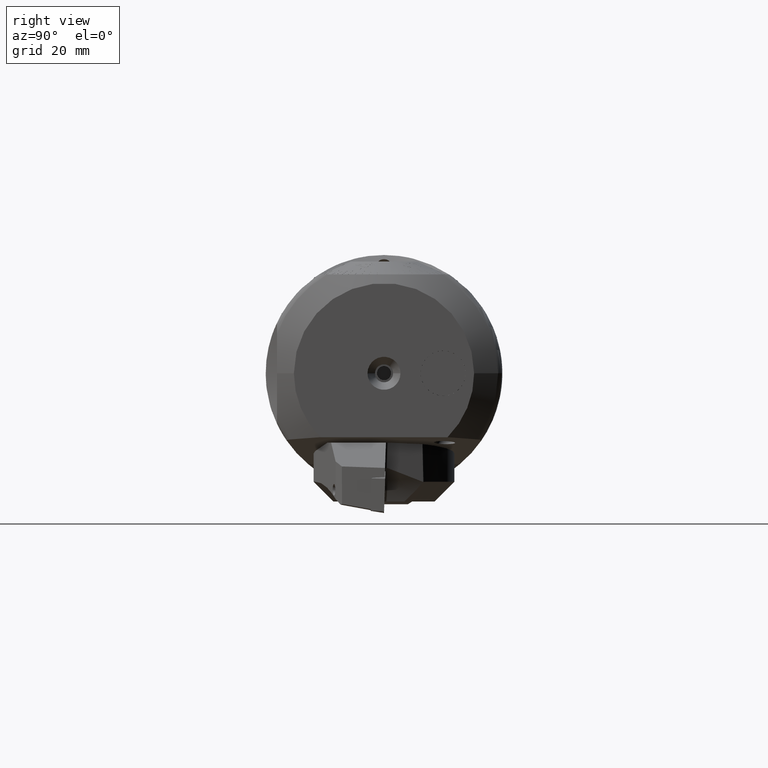
[diagram: clean part render]
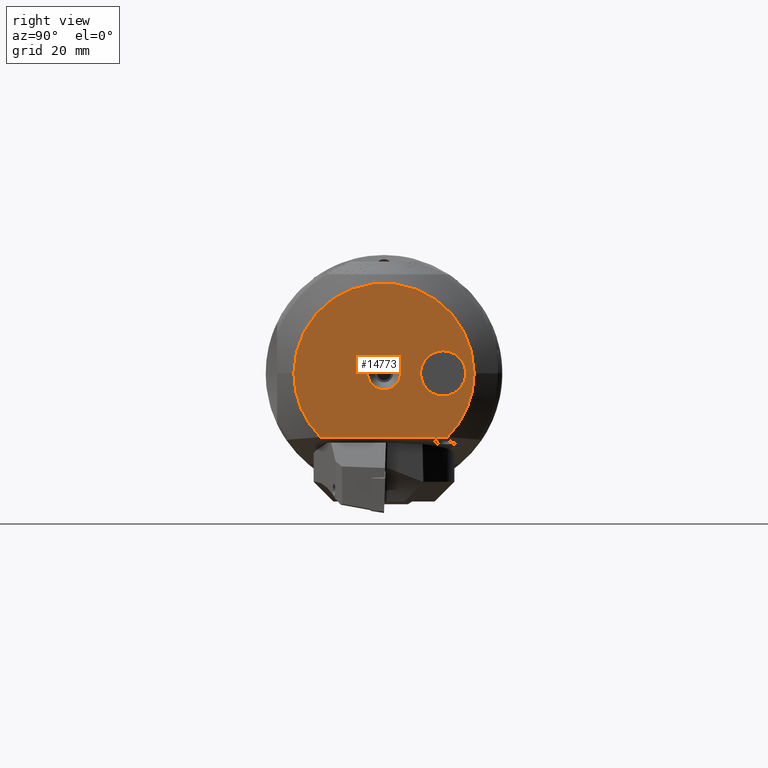
[diagram: same view with one face highlighted and labeled with its STEP entity id]
A machine part, right view. The second image highlights one B-rep face of the part: STEP entity #14773.
In plain terms, the highlighted planar face has unit normal (1, 0, 0).
Its self-contained STEP definition (entity closure, byte-faithful):
#364 = EDGE_CURVE ( 'NONE', #5664, #27847, #26903, .T. ) ;
#464 = EDGE_CURVE ( 'NONE', #27847, #34593, #8776, .T. ) ;
#2719 = DIRECTION ( 'NONE',  ( 0.0000000000000000000, 0.0000000000000000000, -1.000000000000000000 ) ) ;
#2888 = PLANE ( 'NONE',  #29077 ) ;
#3006 = DIRECTION ( 'NONE',  ( -1.283173293544103800E-016, 1.000000000000000000, 0.0000000000000000000 ) ) ;
#3461 = CIRCLE ( 'NONE', #19727, 2.927905619136094800 ) ;
#3491 = VERTEX_POINT ( 'NONE', #35406 ) ;
#4886 = FACE_BOUND ( 'NONE', #6276, .T. ) ;
#5277 = DIRECTION ( 'NONE',  ( 0.0000000000000000000, 1.000000000000000000, 0.0000000000000000000 ) ) ;
#5397 = DIRECTION ( 'NONE',  ( 1.000000000000000000, 1.283173293544103800E-016, -0.0000000000000000000 ) ) ;
#5514 = CARTESIAN_POINT ( 'NONE',  ( 86.75000000000000000, 1.214306433183765000E-014, 0.0000000000000000000 ) ) ;
#5664 = VERTEX_POINT ( 'NONE', #23237 ) ;
#6276 = EDGE_LOOP ( 'NONE', ( #19474, #35083 ) ) ;
#6499 = CARTESIAN_POINT ( 'NONE',  ( 86.75000000000000000, 1.040834085586084300E-014, 0.0000000000000000000 ) ) ;
#6746 = DIRECTION ( 'NONE',  ( 1.000000000000000000, -0.0000000000000000000, -0.0000000000000000000 ) ) ;
#8776 = LINE ( 'NONE', #32409, #15273 ) ;
#8815 = CARTESIAN_POINT ( 'NONE',  ( 86.75000000000000000, 1.040834085586084300E-014, 0.0000000000000000000 ) ) ;
#9293 = DIRECTION ( 'NONE',  ( 0.0000000000000000000, 1.000000000000000000, 0.0000000000000000000 ) ) ;
#10906 = EDGE_CURVE ( 'NONE', #29219, #5664, #23093, .T. ) ;
#11579 = DIRECTION ( 'NONE',  ( 0.0000000000000000000, 1.000000000000000000, 0.0000000000000000000 ) ) ;
#12881 = DIRECTION ( 'NONE',  ( 1.000000000000000000, 1.283173293544103800E-016, -0.0000000000000000000 ) ) ;
#13878 = CIRCLE ( 'NONE', #34981, 3.999999999999994700 ) ;
#13911 = CIRCLE ( 'NONE', #15600, 16.00000000000000000 ) ;
#14037 = FACE_OUTER_BOUND ( 'NONE', #23190, .T. ) ;
#14101 = CARTESIAN_POINT ( 'NONE',  ( 86.75000000000000000, 3.469446951953614200E-015, 0.0000000000000000000 ) ) ;
#14773 = ADVANCED_FACE ( 'NONE', ( #34276, #4886, #14037 ), #2888, .T. ) ;
#15100 = DIRECTION ( 'NONE',  ( 1.000000000000000000, 1.283173293544103800E-016, -0.0000000000000000000 ) ) ;
#15273 = VECTOR ( 'NONE', #29674, 1000.000000000000000 ) ;
#15336 = CARTESIAN_POINT ( 'NONE',  ( 86.75000000000000000, 11.28157381351148400, -11.34575216943734700 ) ) ;
#15538 = AXIS2_PLACEMENT_3D ( 'NONE', #5514, #5397, #5277 ) ;
#15600 = AXIS2_PLACEMENT_3D ( 'NONE', #29396, #12881, #32156 ) ;
#17310 = ORIENTED_EDGE ( 'NONE', *, *, #18056, .F. ) ;
#18056 = EDGE_CURVE ( 'NONE', #22406, #3491, #3461, .T. ) ;
#18937 = EDGE_CURVE ( 'NONE', #23434, #33402, #13878, .T. ) ;
#19348 = DIRECTION ( 'NONE',  ( 1.000000000000000000, -0.0000000000000000000, -0.0000000000000000000 ) ) ;
#19474 = ORIENTED_EDGE ( 'NONE', *, *, #26199, .F. ) ;
#19625 = DIRECTION ( 'NONE',  ( 1.000000000000000000, 1.283173293544103800E-016, -0.0000000000000000000 ) ) ;
#19727 = AXIS2_PLACEMENT_3D ( 'NONE', #6499, #25823, #9293 ) ;
#21933 = ORIENTED_EDGE ( 'NONE', *, *, #10906, .T. ) ;
#22406 = VERTEX_POINT ( 'NONE', #24455 ) ;
#23093 = CIRCLE ( 'NONE', #23412, 16.00000000000000000 ) ;
#23190 = EDGE_LOOP ( 'NONE', ( #31085, #21933, #25795, #30447 ) ) ;
#23237 = CARTESIAN_POINT ( 'NONE',  ( 86.75000000000000000, -15.99999999999998600, 0.0000000000000000000 ) ) ;
#23278 = CARTESIAN_POINT ( 'NONE',  ( 86.75000000000000000, 10.50000000000000900, 0.0000000000000000000 ) ) ;
#23412 = AXIS2_PLACEMENT_3D ( 'NONE', #31594, #15100, #34344 ) ;
#23434 = VERTEX_POINT ( 'NONE', #28005 ) ;
#24455 = CARTESIAN_POINT ( 'NONE',  ( 86.75000000000000000, 2.927905619136105500, 0.0000000000000000000 ) ) ;
#25350 = EDGE_LOOP ( 'NONE', ( #17310, #30983 ) ) ;
#25795 = ORIENTED_EDGE ( 'NONE', *, *, #364, .T. ) ;
#25823 = DIRECTION ( 'NONE',  ( 1.000000000000000000, 1.241363518151841500E-016, -0.0000000000000000000 ) ) ;
#26070 = DIRECTION ( 'NONE',  ( 0.0000000000000000000, 0.0000000000000000000, -1.000000000000000000 ) ) ;
#26199 = EDGE_CURVE ( 'NONE', #33402, #23434, #34640, .T. ) ;
#26903 = CIRCLE ( 'NONE', #15538, 16.00000000000000000 ) ;
#27847 = VERTEX_POINT ( 'NONE', #31494 ) ;
#28005 = CARTESIAN_POINT ( 'NONE',  ( 86.75000000000000000, 10.50000000000000900, 3.999999999999994700 ) ) ;
#28108 = DIRECTION ( 'NONE',  ( 1.000000000000000000, 1.241363518151841500E-016, -0.0000000000000000000 ) ) ;
#29077 = AXIS2_PLACEMENT_3D ( 'NONE', #14101, #19625, #3006 ) ;
#29219 = VERTEX_POINT ( 'NONE', #34449 ) ;
#29344 = CIRCLE ( 'NONE', #31319, 2.927905619136094800 ) ;
#29396 = CARTESIAN_POINT ( 'NONE',  ( 86.75000000000000000, 1.214306433183765000E-014, 0.0000000000000000000 ) ) ;
#29674 = DIRECTION ( 'NONE',  ( -1.283173293544103800E-016, 1.000000000000000000, -2.032346839373654900E-017 ) ) ;
#30447 = ORIENTED_EDGE ( 'NONE', *, *, #464, .T. ) ;
#30983 = ORIENTED_EDGE ( 'NONE', *, *, #34347, .F. ) ;
#31085 = ORIENTED_EDGE ( 'NONE', *, *, #33157, .T. ) ;
#31319 = AXIS2_PLACEMENT_3D ( 'NONE', #8815, #28108, #11579 ) ;
#31494 = CARTESIAN_POINT ( 'NONE',  ( 86.75000000000000000, -11.28157381351145700, -11.34575216943734900 ) ) ;
#31565 = AXIS2_PLACEMENT_3D ( 'NONE', #23278, #6746, #26070 ) ;
#31594 = CARTESIAN_POINT ( 'NONE',  ( 86.75000000000000000, 1.214306433183765000E-014, 0.0000000000000000000 ) ) ;
#32156 = DIRECTION ( 'NONE',  ( 0.0000000000000000000, 1.000000000000000000, 0.0000000000000000000 ) ) ;
#32409 = CARTESIAN_POINT ( 'NONE',  ( 86.75000000000000000, 3.469446951953614200E-015, -11.34575216943734700 ) ) ;
#33117 = CARTESIAN_POINT ( 'NONE',  ( 86.75000000000000000, 10.50000000000000900, -3.999999999999994700 ) ) ;
#33157 = EDGE_CURVE ( 'NONE', #34593, #29219, #13911, .T. ) ;
#33402 = VERTEX_POINT ( 'NONE', #33117 ) ;
#34276 = FACE_BOUND ( 'NONE', #25350, .T. ) ;
#34344 = DIRECTION ( 'NONE',  ( 0.0000000000000000000, 1.000000000000000000, 0.0000000000000000000 ) ) ;
#34347 = EDGE_CURVE ( 'NONE', #3491, #22406, #29344, .T. ) ;
#34449 = CARTESIAN_POINT ( 'NONE',  ( 86.75000000000000000, 16.00000000000001400, 2.219672323454578100E-015 ) ) ;
#34593 = VERTEX_POINT ( 'NONE', #15336 ) ;
#34640 = CIRCLE ( 'NONE', #31565, 3.999999999999994700 ) ;
#34981 = AXIS2_PLACEMENT_3D ( 'NONE', #35865, #19348, #2719 ) ;
#35083 = ORIENTED_EDGE ( 'NONE', *, *, #18937, .F. ) ;
#35406 = CARTESIAN_POINT ( 'NONE',  ( 86.75000000000000000, -2.927905619136084600, 3.585650244680568800E-016 ) ) ;
#35865 = CARTESIAN_POINT ( 'NONE',  ( 86.75000000000000000, 10.50000000000000900, 0.0000000000000000000 ) ) ;